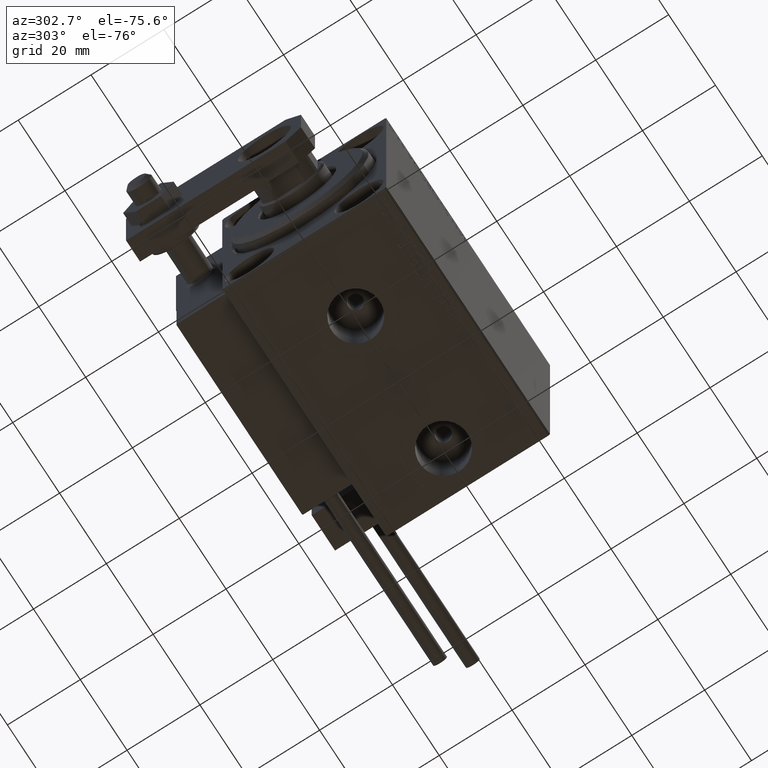
[diagram: clean part render]
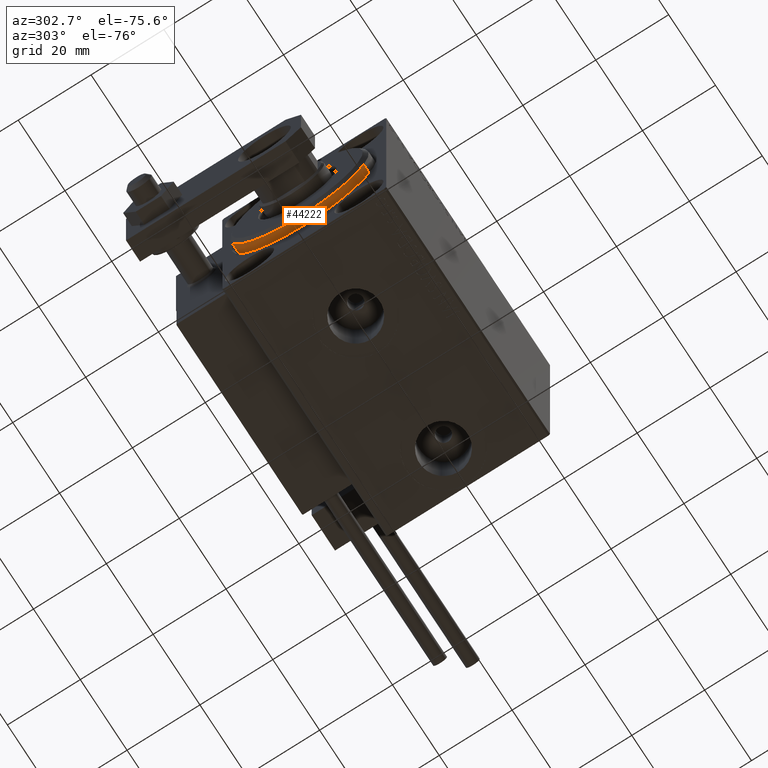
[diagram: same view with one face highlighted and labeled with its STEP entity id]
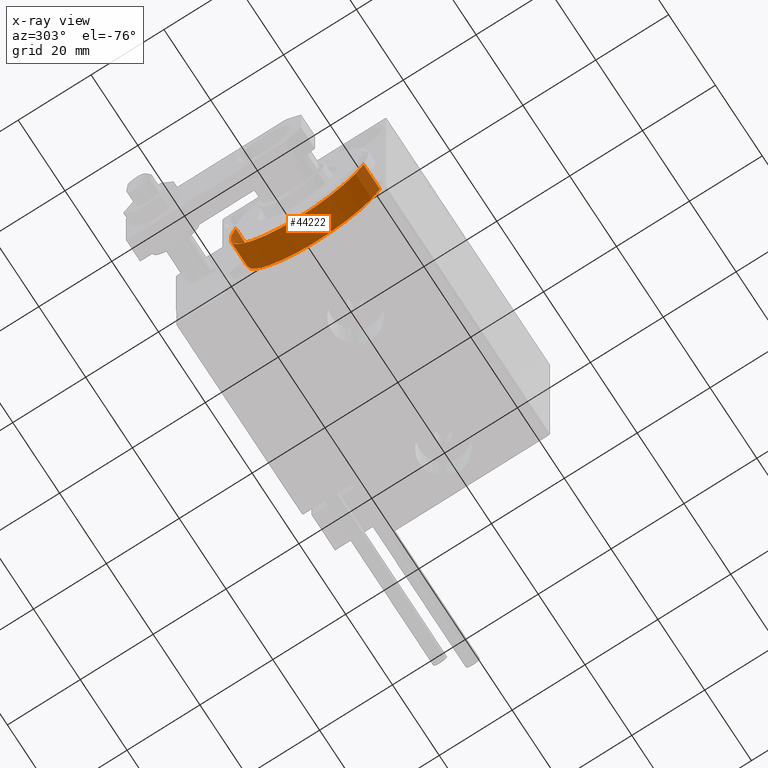
[diagram: x-ray of the same camera — body ghosted, the highlighted face saturated]
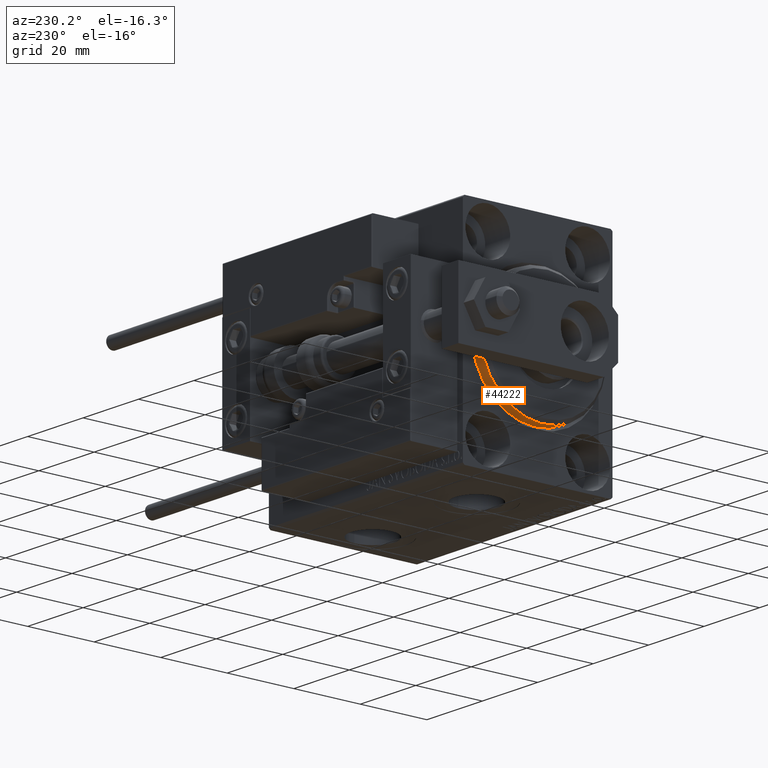
[diagram: same view with one face highlighted and labeled with its STEP entity id]
A machine part, auxiliary view. The second image highlights one B-rep face of the part: STEP entity #44222.
The next image is the same camera in x-ray: the body ghosted, the highlighted face saturated — about 2% of this face is hidden behind the body in this view.
A second angle (auxiliary view) of the same face is appended — the face is thin or edge-on in the first view.
In plain terms, the highlighted cylindrical surface (partial cylindrical patch) has radius 19 mm, axis along (1, 0, 0).
Its self-contained STEP definition (entity closure, byte-faithful):
#1342 = CARTESIAN_POINT ( 'NONE',  ( 1.999999999999992228, 0.000000000000000000, 19.00000000000000000 ) ) ;
#3546 = VERTEX_POINT ( 'NONE', #41379 ) ;
#4036 = EDGE_CURVE ( 'NONE', #8312, #3546, #20141, .T. ) ;
#6056 = CARTESIAN_POINT ( 'NONE',  ( 3.000000000000000000, 0.000000000000000000, 0.000000000000000000 ) ) ;
#6106 = DIRECTION ( 'NONE',  ( 0.000000000000000000, 0.000000000000000000, 1.000000000000000000 ) ) ;
#8312 = VERTEX_POINT ( 'NONE', #1342 ) ;
#8874 = DIRECTION ( 'NONE',  ( -1.000000000000000000, 0.000000000000000000, 0.000000000000000000 ) ) ;
#10893 = ORIENTED_EDGE ( 'NONE', *, *, #35928, .T. ) ;
#11003 = VECTOR ( 'NONE', #43030, 1000.000000000000000 ) ;
#11582 = AXIS2_PLACEMENT_3D ( 'NONE', #38093, #42154, #6106 ) ;
#16050 = VERTEX_POINT ( 'NONE', #41768 ) ;
#16428 = CARTESIAN_POINT ( 'NONE',  ( 3.000000000000000000, 2.326828918379970970E-15, -19.00000000000000000 ) ) ;
#20141 = LINE ( 'NONE', #27521, #11003 ) ;
#22347 = EDGE_CURVE ( 'NONE', #3546, #16050, #34318, .T. ) ;
#24403 = DIRECTION ( 'NONE',  ( 0.000000000000000000, 0.000000000000000000, -1.000000000000000000 ) ) ;
#24653 = CYLINDRICAL_SURFACE ( 'NONE', #45111, 19.00000000000000000 ) ;
#27136 = ORIENTED_EDGE ( 'NONE', *, *, #22347, .F. ) ;
#27521 = CARTESIAN_POINT ( 'NONE',  ( 3.000000000000000000, 0.000000000000000000, 19.00000000000000000 ) ) ;
#27839 = EDGE_CURVE ( 'NONE', #8312, #34101, #33708, .T. ) ;
#28481 = FACE_OUTER_BOUND ( 'NONE', #38484, .T. ) ;
#29611 = ORIENTED_EDGE ( 'NONE', *, *, #27839, .T. ) ;
#32188 = LINE ( 'NONE', #16428, #35146 ) ;
#33708 = CIRCLE ( 'NONE', #47519, 19.00000000000000000 ) ;
#34101 = VERTEX_POINT ( 'NONE', #44208 ) ;
#34318 = CIRCLE ( 'NONE', #11582, 19.00000000000000000 ) ;
#35146 = VECTOR ( 'NONE', #43637, 1000.000000000000000 ) ;
#35843 = DIRECTION ( 'NONE',  ( 0.000000000000000000, 0.000000000000000000, 1.000000000000000000 ) ) ;
#35928 = EDGE_CURVE ( 'NONE', #34101, #16050, #32188, .T. ) ;
#38093 = CARTESIAN_POINT ( 'NONE',  ( -5.000000000000000000, 0.000000000000000000, 0.000000000000000000 ) ) ;
#38484 = EDGE_LOOP ( 'NONE', ( #29611, #10893, #27136, #48294 ) ) ;
#39667 = CARTESIAN_POINT ( 'NONE',  ( 1.999999999999992228, 0.000000000000000000, 0.000000000000000000 ) ) ;
#41379 = CARTESIAN_POINT ( 'NONE',  ( -5.000000000000000000, 0.000000000000000000, 19.00000000000000000 ) ) ;
#41768 = CARTESIAN_POINT ( 'NONE',  ( -5.000000000000000000, 2.326828918379970970E-15, -19.00000000000000000 ) ) ;
#42154 = DIRECTION ( 'NONE',  ( -1.000000000000000000, 0.000000000000000000, 0.000000000000000000 ) ) ;
#43030 = DIRECTION ( 'NONE',  ( -1.000000000000000000, -0.000000000000000000, -0.000000000000000000 ) ) ;
#43637 = DIRECTION ( 'NONE',  ( -1.000000000000000000, -0.000000000000000000, -0.000000000000000000 ) ) ;
#44208 = CARTESIAN_POINT ( 'NONE',  ( 1.999999999999992228, 2.326828918379970970E-15, -19.00000000000000000 ) ) ;
#44222 = ADVANCED_FACE ( 'NONE', ( #28481 ), #24653, .T. ) ;
#44241 = DIRECTION ( 'NONE',  ( -1.000000000000000000, -0.000000000000000000, -0.000000000000000000 ) ) ;
#45111 = AXIS2_PLACEMENT_3D ( 'NONE', #6056, #44241, #35843 ) ;
#47519 = AXIS2_PLACEMENT_3D ( 'NONE', #39667, #8874, #24403 ) ;
#48294 = ORIENTED_EDGE ( 'NONE', *, *, #4036, .F. ) ;